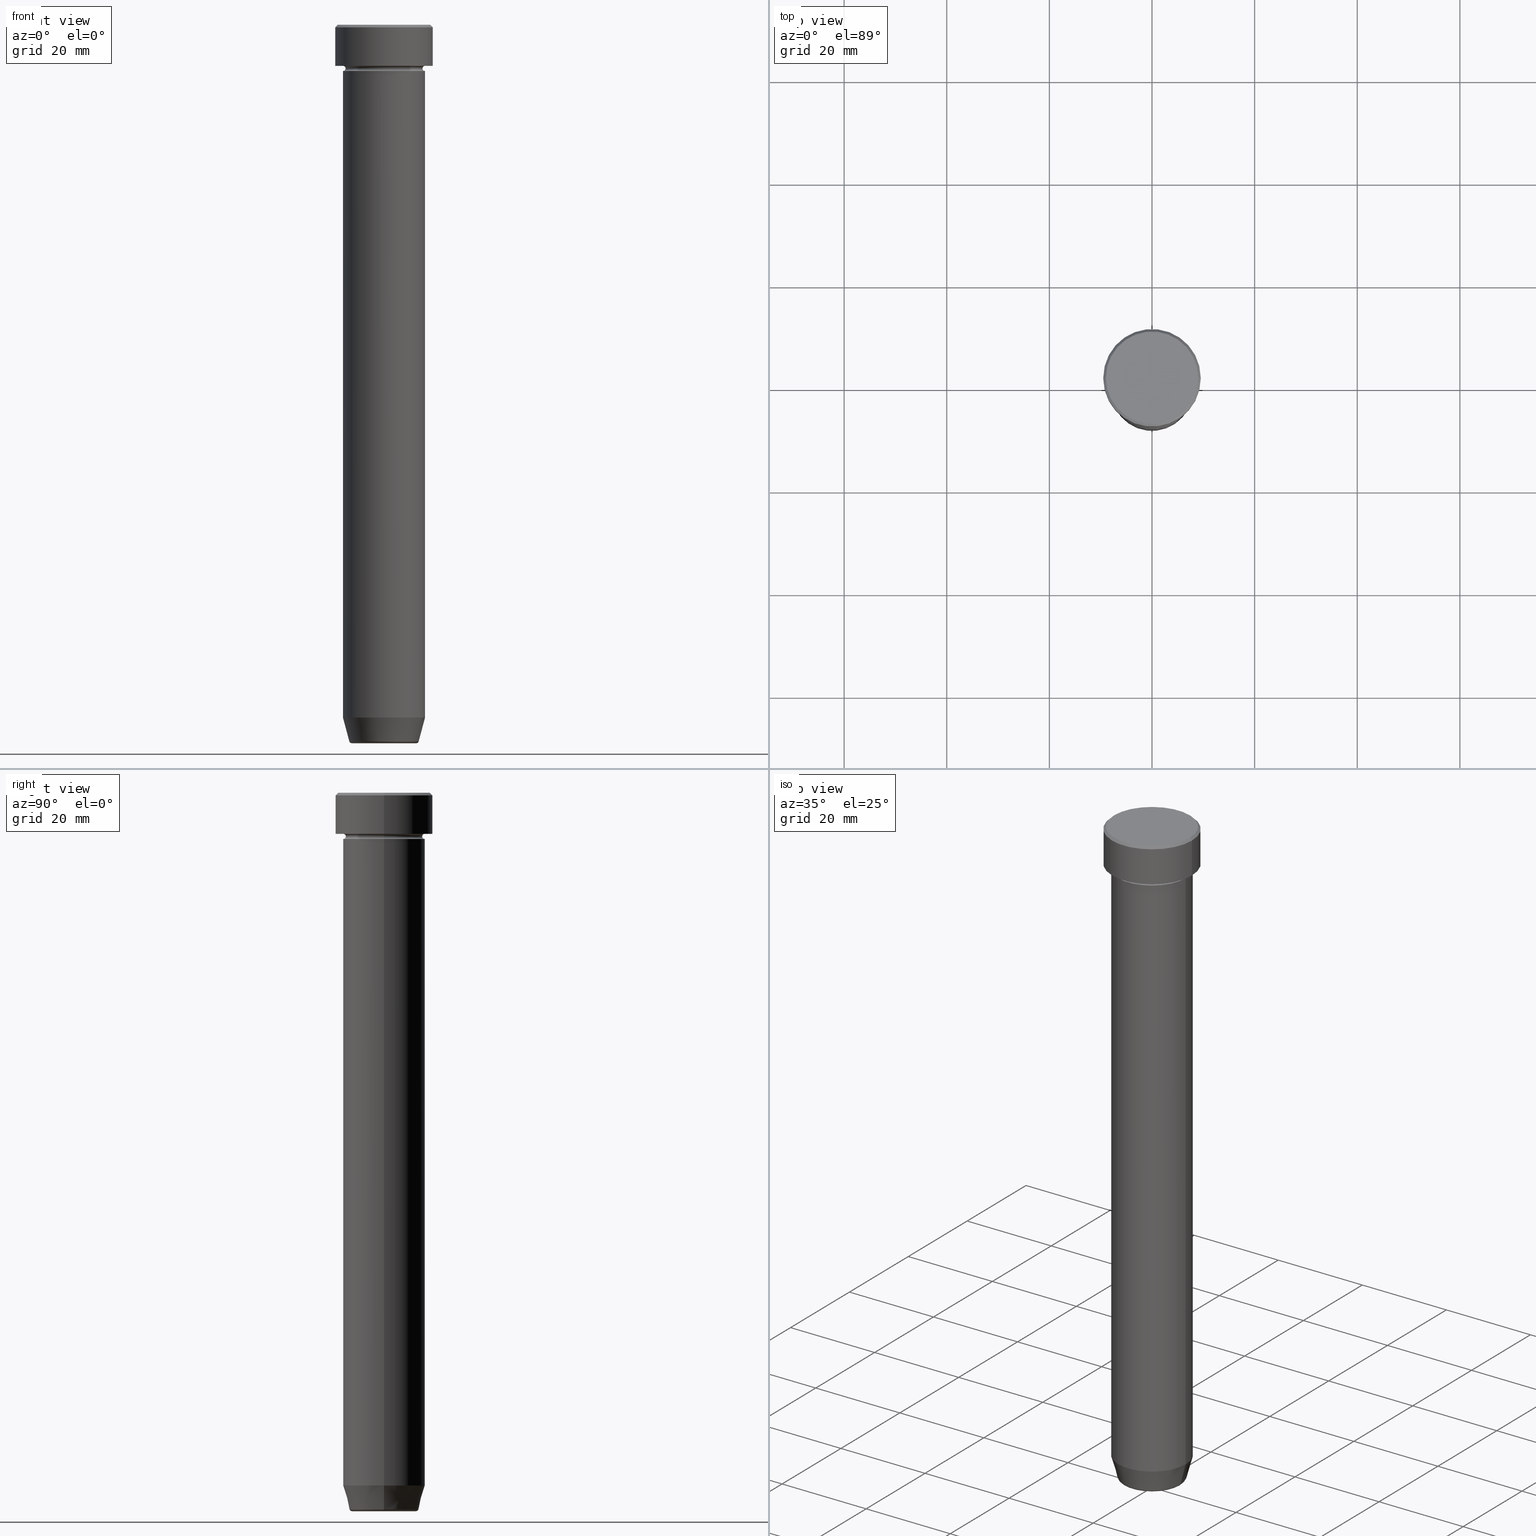
[diagram: canonical four-view strip — front | top / right | iso, engineering-drawing reading convention]
A machine part, canonical four-view strip (front | top / right | iso — engineering-drawing reading convention). The complete STEP part file that produces these views, byte-faithful:
ISO-10303-21;
HEADER;
FILE_DESCRIPTION (( 'STEP AP203' ),
    '1' );
FILE_NAME ('9b4e.STEP',
    '2024-01-02T22:11:18',
    ( '' ),
    ( '' ),
    'SwSTEP 2.0',
    'SolidWorks 2019',
    '' );
FILE_SCHEMA (( 'CONFIG_CONTROL_DESIGN' ));
ENDSEC;

DATA;
#1 = CARTESIAN_POINT ( 'NONE',  ( 9.000000000000001776, 1.102182119232617911E-15, 0.000000000000000000 ) ) ;
#2 = EDGE_CURVE ( 'NONE', #160, #187, #468, .T. ) ;
#3 = DIRECTION ( 'NONE',  ( -1.000000000000000000, 0.000000000000000000, 0.000000000000000000 ) ) ;
#4 = LINE ( 'NONE', #553, #63 ) ;
#5 = AXIS2_PLACEMENT_3D ( 'NONE', #596, #28, #176 ) ;
#6 = ORIENTED_EDGE ( 'NONE', *, *, #450, .T. ) ;
#7 = DATE_AND_TIME ( #227, #274 ) ;
#8 = CARTESIAN_POINT ( 'NONE',  ( 0.000000000000000000, 0.000000000000000000, 0.000000000000000000 ) ) ;
#9 = ORIENTED_EDGE ( 'NONE', *, *, #324, .T. ) ;
#10 = DIRECTION ( 'NONE',  ( 0.000000000000000000, 0.000000000000000000, 1.000000000000000000 ) ) ;
#11 = CARTESIAN_POINT ( 'NONE',  ( 0.000000000000000000, 0.000000000000000000, -134.9999999999999432 ) ) ;
#12 = ORIENTED_EDGE ( 'NONE', *, *, #433, .T. ) ;
#13 = APPROVAL_ROLE ( '' ) ;
#14 = CARTESIAN_POINT ( 'NONE',  ( -6.759553456999428001, 9.037619948979300296E-16, -139.6294095225512422 ) ) ;
#15 = CC_DESIGN_APPROVAL ( #115, ( #215 ) ) ;
#16 = VERTEX_POINT ( 'NONE', #391 ) ;
#17 = AXIS2_PLACEMENT_3D ( 'NONE', #388, #530, #300 ) ;
#18 = LINE ( 'NONE', #385, #265 ) ;
#19 = ORIENTED_EDGE ( 'NONE', *, *, #498, .F. ) ;
#20 = ADVANCED_BREP_SHAPE_REPRESENTATION ( '9b4e', ( #206, #367, #378 ), #149 ) ;
#21 = ORIENTED_EDGE ( 'NONE', *, *, #390, .F. ) ;
#22 = APPROVAL_DATE_TIME ( #290, #61 ) ;
#23 = EDGE_CURVE ( 'NONE', #401, #386, #563, .T. ) ;
#24 = DIRECTION ( 'NONE',  ( -0.000000000000000000, -0.000000000000000000, 1.000000000000000000 ) ) ;
#25 = CIRCLE ( 'NONE', #89, 0.5000000000000004441 ) ;
#26 = FACE_OUTER_BOUND ( 'NONE', #371, .T. ) ;
#27 = CYLINDRICAL_SURFACE ( 'NONE', #32, 8.000000000000000000 ) ;
#28 = DIRECTION ( 'NONE',  ( -0.000000000000000000, -0.000000000000000000, 1.000000000000000000 ) ) ;
#29 = DIRECTION ( 'NONE',  ( -0.000000000000000000, -0.000000000000000000, 1.000000000000000000 ) ) ;
#30 = AXIS2_PLACEMENT_3D ( 'NONE', #11, #191, #560 ) ;
#31 = LINE ( 'NONE', #128, #307 ) ;
#32 = AXIS2_PLACEMENT_3D ( 'NONE', #126, #266, #589 ) ;
#33 = ADVANCED_FACE ( 'NONE', ( #527 ), #211, .T. ) ;
#34 = CARTESIAN_POINT ( 'NONE',  ( 0.000000000000000000, 0.000000000000000000, -8.500000000000000000 ) ) ;
#35 = CIRCLE ( 'NONE', #395, 0.5000000000000004441 ) ;
#36 = DIRECTION ( 'NONE',  ( -0.000000000000000000, -0.000000000000000000, 1.000000000000000000 ) ) ;
#37 = ORIENTED_EDGE ( 'NONE', *, *, #225, .F. ) ;
#38 = ORIENTED_EDGE ( 'NONE', *, *, #433, .F. ) ;
#39 = CARTESIAN_POINT ( 'NONE',  ( 0.000000000000000000, 0.000000000000000000, -8.000000000000000000 ) ) ;
#40 = AXIS2_PLACEMENT_3D ( 'NONE', #568, #423, #212 ) ;
#41 = EDGE_LOOP ( 'NONE', ( #19, #224, #489, #569 ) ) ;
#42 = TOROIDAL_SURFACE ( 'NONE', #318, 8.000000000000000000, 0.5000000000000000000 ) ;
#43 = LINE ( 'NONE', #273, #380 ) ;
#44 = CC_DESIGN_PERSON_AND_ORGANIZATION_ASSIGNMENT ( #200, #205, ( #459 ) ) ;
#45 = PERSON_AND_ORGANIZATION_ROLE ( 'design_owner' ) ;
#46 = DIRECTION ( 'NONE',  ( 1.000000000000000000, 0.000000000000000000, 0.000000000000000000 ) ) ;
#47 =( LENGTH_UNIT ( ) NAMED_UNIT ( * ) SI_UNIT ( .MILLI., .METRE. ) );
#48 = DIRECTION ( 'NONE',  ( 1.000000000000000000, 0.000000000000000000, 0.000000000000000000 ) ) ;
#49 = AXIS2_PLACEMENT_3D ( 'NONE', #443, #541, #438 ) ;
#50 = CARTESIAN_POINT ( 'NONE',  ( 0.000000000000000000, 0.000000000000000000, 0.000000000000000000 ) ) ;
#51 = LOCAL_TIME ( 23, 11, 18.00000000000000000, #579 ) ;
#52 = ORIENTED_EDGE ( 'NONE', *, *, #232, .T. ) ;
#53 = DIRECTION ( 'NONE',  ( 0.7071067811865489050, 8.659560562354950115E-17, -0.7071067811865462405 ) ) ;
#54 = ORIENTED_EDGE ( 'NONE', *, *, #364, .T. ) ;
#55 = DATE_TIME_ROLE ( 'classification_date' ) ;
#56 = CARTESIAN_POINT ( 'NONE',  ( 7.500000000000000000, 0.000000000000000000, -8.500000000000000000 ) ) ;
#57 = EDGE_CURVE ( 'NONE', #152, #295, #43, .T. ) ;
#58 = VERTEX_POINT ( 'NONE', #475 ) ;
#59 = CARTESIAN_POINT ( 'NONE',  ( 0.000000000000000000, 0.000000000000000000, 0.000000000000000000 ) ) ;
#60 = AXIS2_PLACEMENT_3D ( 'NONE', #263, #491, #488 ) ;
#61 = APPROVAL ( #375, 'NEUR�EN�' ) ;
#62 = ORIENTED_EDGE ( 'NONE', *, *, #264, .F. ) ;
#63 = VECTOR ( 'NONE', #557, 999.9999999999998863 ) ;
#64 = CARTESIAN_POINT ( 'NONE',  ( 6.759553456999428001, 0.000000000000000000, -139.6294095225512422 ) ) ;
#65 = ORIENTED_EDGE ( 'NONE', *, *, #23, .T. ) ;
#66 = ADVANCED_FACE ( 'NONE', ( #72 ), #331, .T. ) ;
#67 = COORDINATED_UNIVERSAL_TIME_OFFSET ( 1, 0, .AHEAD. ) ;
#68 = DIRECTION ( 'NONE',  ( 1.000000000000000000, 0.000000000000000000, 0.000000000000000000 ) ) ;
#69 = ORIENTED_EDGE ( 'NONE', *, *, #119, .F. ) ;
#70 = PERSON_AND_ORGANIZATION ( #529, #121 ) ;
#71 = CARTESIAN_POINT ( 'NONE',  ( 0.000000000000000000, 0.000000000000000000, -139.4999999999999716 ) ) ;
#72 = FACE_OUTER_BOUND ( 'NONE', #573, .T. ) ;
#73 = AXIS2_PLACEMENT_3D ( 'NONE', #90, #505, #549 ) ;
#74 = FACE_OUTER_BOUND ( 'NONE', #335, .T. ) ;
#75 = CARTESIAN_POINT ( 'NONE',  ( 0.000000000000000000, 0.000000000000000000, -0.4999999999999968914 ) ) ;
#76 = DIRECTION ( 'NONE',  ( 1.000000000000000000, 0.000000000000000000, 0.000000000000000000 ) ) ;
#77 = PRODUCT_RELATED_PRODUCT_CATEGORY ( 'detail', '', ( #188 ) ) ;
#78 = CIRCLE ( 'NONE', #101, 0.4999999999999995559 ) ;
#79 = DIRECTION ( 'NONE',  ( -0.2588190451025214056, 3.169619151431772953E-17, 0.9659258262890680902 ) ) ;
#80 = VERTEX_POINT ( 'NONE', #430 ) ;
#81 = ADVANCED_FACE ( 'NONE', ( #26 ), #210, .T. ) ;
#82 = CARTESIAN_POINT ( 'NONE',  ( 0.000000000000000000, 0.000000000000000000, -8.000000000000000000 ) ) ;
#83 = DIRECTION ( 'NONE',  ( -0.000000000000000000, -0.000000000000000000, 1.000000000000000000 ) ) ;
#84 = ORIENTED_EDGE ( 'NONE', *, *, #232, .F. ) ;
#85 = AXIS2_PLACEMENT_3D ( 'NONE', #59, #24, #379 ) ;
#86 = DIRECTION ( 'NONE',  ( -0.000000000000000000, -0.000000000000000000, 1.000000000000000000 ) ) ;
#87 = ORIENTED_EDGE ( 'NONE', *, *, #444, .F. ) ;
#88 = ORIENTED_EDGE ( 'NONE', *, *, #518, .T. ) ;
#89 = AXIS2_PLACEMENT_3D ( 'NONE', #233, #230, #405 ) ;
#90 = CARTESIAN_POINT ( 'NONE',  ( 0.000000000000000000, 0.000000000000000000, -22.00000000000000000 ) ) ;
#91 = EDGE_CURVE ( 'NONE', #401, #295, #4, .T. ) ;
#92 = CIRCLE ( 'NONE', #73, 8.000000000000000000 ) ;
#93 = DIRECTION ( 'NONE',  ( -1.000000000000000000, 1.224646799147353454E-16, 0.000000000000000000 ) ) ;
#94 = CARTESIAN_POINT ( 'NONE',  ( 9.500000000000000000, 0.000000000000000000, 0.000000000000000000 ) ) ;
#95 = ADVANCED_FACE ( 'NONE', ( #276 ), #317, .T. ) ;
#96 = CARTESIAN_POINT ( 'NONE',  ( 0.000000000000000000, 0.000000000000000000, -9.000000000000001776 ) ) ;
#97 = DIRECTION ( 'NONE',  ( -1.000000000000000000, -1.224646799147353454E-16, 0.000000000000000000 ) ) ;
#98 = VERTEX_POINT ( 'NONE', #464 ) ;
#99 = EDGE_CURVE ( 'NONE', #558, #112, #411, .T. ) ;
#100 = COORDINATED_UNIVERSAL_TIME_OFFSET ( 1, 0, .AHEAD. ) ;
#101 = AXIS2_PLACEMENT_3D ( 'NONE', #454, #403, #93 ) ;
#102 = DIRECTION ( 'NONE',  ( 1.000000000000000000, 0.000000000000000000, 0.000000000000000000 ) ) ;
#103 = ORIENTED_EDGE ( 'NONE', *, *, #412, .F. ) ;
#104 = DIRECTION ( 'NONE',  ( 1.000000000000000000, 0.000000000000000000, 0.000000000000000000 ) ) ;
#105 = DIRECTION ( 'NONE',  ( 1.000000000000000000, 0.000000000000000000, 0.000000000000000000 ) ) ;
#106 = ORIENTED_EDGE ( 'NONE', *, *, #250, .F. ) ;
#107 = LINE ( 'NONE', #340, #572 ) ;
#108 = ORIENTED_EDGE ( 'NONE', *, *, #538, .T. ) ;
#109 = DIRECTION ( 'NONE',  ( -1.000000000000000000, 0.000000000000000000, -0.000000000000000000 ) ) ;
#110 = AXIS2_PLACEMENT_3D ( 'NONE', #544, #352, #533 ) ;
#111 = EDGE_CURVE ( 'NONE', #386, #424, #143, .T. ) ;
#112 = VERTEX_POINT ( 'NONE', #407 ) ;
#113 = DIRECTION ( 'NONE',  ( 0.2588190451025214056, 0.000000000000000000, 0.9659258262890680902 ) ) ;
#114 = ORIENTED_EDGE ( 'NONE', *, *, #324, .F. ) ;
#115 = APPROVAL ( #546, 'NEUR�EN�' ) ;
#116 = CALENDAR_DATE ( 2024, 2, 1 ) ;
#117 = CARTESIAN_POINT ( 'NONE',  ( 0.000000000000000000, 0.000000000000000000, -139.9999999999999716 ) ) ;
#118 = ORIENTED_EDGE ( 'NONE', *, *, #99, .T. ) ;
#119 = EDGE_CURVE ( 'NONE', #152, #202, #543, .T. ) ;
#120 = DIRECTION ( 'NONE',  ( 0.000000000000000000, 0.000000000000000000, -1.000000000000000000 ) ) ;
#121 = ORGANIZATION ( 'NEUR�EN�', 'NEUR�EN�', '' ) ;
#122 = EDGE_LOOP ( 'NONE', ( #286, #313, #269, #84 ) ) ;
#123 = TOROIDAL_SURFACE ( 'NONE', #481, 8.000000000000000000, 0.5000000000000000000 ) ;
#124 = DIRECTION ( 'NONE',  ( -0.000000000000000000, -0.000000000000000000, 1.000000000000000000 ) ) ;
#125 = DIRECTION ( 'NONE',  ( 0.000000000000000000, 0.000000000000000000, -1.000000000000000000 ) ) ;
#126 = CARTESIAN_POINT ( 'NONE',  ( 0.000000000000000000, 0.000000000000000000, 0.000000000000000000 ) ) ;
#127 = AXIS2_PLACEMENT_3D ( 'NONE', #169, #214, #587 ) ;
#128 = CARTESIAN_POINT ( 'NONE',  ( -8.000000000000000000, 9.797174393178825657E-16, 0.000000000000000000 ) ) ;
#129 = DIRECTION ( 'NONE',  ( 0.000000000000000000, 0.000000000000000000, -1.000000000000000000 ) ) ;
#130 = UNCERTAINTY_MEASURE_WITH_UNIT (LENGTH_MEASURE( 1.000000000000000082E-05 ), #47, 'distance_accuracy_value', 'NONE');
#131 = CARTESIAN_POINT ( 'NONE',  ( 6.276590543854897675, 0.000000000000000000, -139.4999999999999716 ) ) ;
#132 = EDGE_LOOP ( 'NONE', ( #204, #465, #414, #21 ) ) ;
#133 = VERTEX_POINT ( 'NONE', #56 ) ;
#134 = CIRCLE ( 'NONE', #448, 6.276590543854897675 ) ;
#135 = ADVANCED_FACE ( 'NONE', ( #416 ), #376, .T. ) ;
#136 = AXIS2_PLACEMENT_3D ( 'NONE', #406, #326, #510 ) ;
#137 = CIRCLE ( 'NONE', #49, 0.5000000000000004441 ) ;
#138 = FACE_OUTER_BOUND ( 'NONE', #122, .T. ) ;
#139 = DIRECTION ( 'NONE',  ( 0.000000000000000000, 0.000000000000000000, -1.000000000000000000 ) ) ;
#140 = CIRCLE ( 'NONE', #440, 6.759553456999428001 ) ;
#141 = EDGE_LOOP ( 'NONE', ( #524, #434, #54, #381 ) ) ;
#142 = PERSON_AND_ORGANIZATION ( #529, #121 ) ;
#143 = LINE ( 'NONE', #1, #175 ) ;
#144 = ORIENTED_EDGE ( 'NONE', *, *, #490, .T. ) ;
#145 = MECHANICAL_CONTEXT ( 'NONE', #536, 'mechanical' ) ;
#146 = DIRECTION ( 'NONE',  ( -1.224646799147353207E-16, 1.000000000000000000, 0.000000000000000000 ) ) ;
#147 = ORIENTED_EDGE ( 'NONE', *, *, #554, .T. ) ;
#148 = DIRECTION ( 'NONE',  ( -1.000000000000000000, 0.000000000000000000, -0.000000000000000000 ) ) ;
#149 =( GEOMETRIC_REPRESENTATION_CONTEXT ( 3 ) GLOBAL_UNCERTAINTY_ASSIGNED_CONTEXT ( ( #130 ) ) GLOBAL_UNIT_ASSIGNED_CONTEXT ( ( #47, #181, #415 ) ) REPRESENTATION_CONTEXT ( 'NONE', 'WORKASPACE' ) );
#150 = DIRECTION ( 'NONE',  ( -0.000000000000000000, -0.000000000000000000, 1.000000000000000000 ) ) ;
#151 = VECTOR ( 'NONE', #502, 1000.000000000000000 ) ;
#152 = VERTEX_POINT ( 'NONE', #241 ) ;
#153 = FACE_OUTER_BOUND ( 'NONE', #479, .T. ) ;
#154 = ORIENTED_EDGE ( 'NONE', *, *, #518, .F. ) ;
#155 = DATE_AND_TIME ( #477, #586 ) ;
#156 = FACE_OUTER_BOUND ( 'NONE', #562, .T. ) ;
#157 = EDGE_LOOP ( 'NONE', ( #311, #88 ) ) ;
#158 = DIRECTION ( 'NONE',  ( -0.000000000000000000, -0.000000000000000000, 1.000000000000000000 ) ) ;
#159 = TOROIDAL_SURFACE ( 'NONE', #499, 8.000000000000000000, 0.5000000000000000000 ) ;
#160 = VERTEX_POINT ( 'NONE', #179 ) ;
#161 = EDGE_LOOP ( 'NONE', ( #303, #599 ) ) ;
#162 = DIRECTION ( 'NONE',  ( 0.000000000000000000, -0.000000000000000000, 1.000000000000000000 ) ) ;
#163 = ORIENTED_EDGE ( 'NONE', *, *, #428, .F. ) ;
#164 = EDGE_CURVE ( 'NONE', #193, #442, #463, .T. ) ;
#165 = DIRECTION ( 'NONE',  ( -0.000000000000000000, -0.000000000000000000, 1.000000000000000000 ) ) ;
#166 = CIRCLE ( 'NONE', #60, 8.000000000000000000 ) ;
#167 = CC_DESIGN_APPROVAL ( #61, ( #197 ) ) ;
#168 = DIRECTION ( 'NONE',  ( -1.000000000000000000, 0.000000000000000000, 0.000000000000000000 ) ) ;
#169 = CARTESIAN_POINT ( 'NONE',  ( 0.000000000000000000, 0.000000000000000000, -22.00000000000000000 ) ) ;
#170 = EDGE_CURVE ( 'NONE', #16, #343, #92, .T. ) ;
#171 = CARTESIAN_POINT ( 'NONE',  ( 8.000000000000000000, 0.000000000000000000, -22.00000000000000000 ) ) ;
#172 = ORIENTED_EDGE ( 'NONE', *, *, #264, .T. ) ;
#173 = CIRCLE ( 'NONE', #393, 0.5000000000000004441 ) ;
#174 = DIRECTION ( 'NONE',  ( 0.000000000000000000, -1.000000000000000000, 0.000000000000000000 ) ) ;
#175 = VECTOR ( 'NONE', #53, 999.9999999999998863 ) ;
#176 = DIRECTION ( 'NONE',  ( 1.000000000000000000, 0.000000000000000000, 0.000000000000000000 ) ) ;
#177 = DIRECTION ( 'NONE',  ( 0.000000000000000000, 0.000000000000000000, -1.000000000000000000 ) ) ;
#178 = VERTEX_POINT ( 'NONE', #234 ) ;
#179 = CARTESIAN_POINT ( 'NONE',  ( -7.500000000000000000, 9.491012693391985815E-16, -8.500000000000000000 ) ) ;
#180 = CIRCLE ( 'NONE', #523, 8.000000000000000000 ) ;
#181 =( NAMED_UNIT ( * ) PLANE_ANGLE_UNIT ( ) SI_UNIT ( $, .RADIAN. ) );
#182 = CARTESIAN_POINT ( 'NONE',  ( -8.000000000000000000, 9.797174393178825657E-16, -22.00000000000000000 ) ) ;
#183 = ORIENTED_EDGE ( 'NONE', *, *, #164, .F. ) ;
#184 = DIRECTION ( 'NONE',  ( 1.000000000000000000, 0.000000000000000000, 0.000000000000000000 ) ) ;
#185 = CARTESIAN_POINT ( 'NONE',  ( 0.000000000000000000, 8.000000000000000000, -22.00000000000000000 ) ) ;
#186 = EDGE_CURVE ( 'NONE', #202, #424, #323, .T. ) ;
#187 = VERTEX_POINT ( 'NONE', #455 ) ;
#188 = PRODUCT ( '9b4e', '9b4e', '', ( #145 ) ) ;
#189 = PERSON_AND_ORGANIZATION ( #529, #121 ) ;
#190 = AXIS2_PLACEMENT_3D ( 'NONE', #522, #299, #472 ) ;
#191 = DIRECTION ( 'NONE',  ( -0.000000000000000000, -0.000000000000000000, 1.000000000000000000 ) ) ;
#192 = AXIS2_PLACEMENT_3D ( 'NONE', #580, #435, #469 ) ;
#193 = VERTEX_POINT ( 'NONE', #182 ) ;
#194 = APPROVAL_DATE_TIME ( #336, #301 ) ;
#195 = APPROVAL_PERSON_ORGANIZATION ( #142, #115, #410 ) ;
#196 = DIRECTION ( 'NONE',  ( 1.000000000000000000, 0.000000000000000000, 0.000000000000000000 ) ) ;
#197 = PRODUCT_DEFINITION_FORMATION_WITH_SPECIFIED_SOURCE ( 'LIBOVOLN�', '', #188, .NOT_KNOWN. ) ;
#198 = ORIENTED_EDGE ( 'NONE', *, *, #498, .T. ) ;
#199 = EDGE_CURVE ( 'NONE', #133, #178, #35, .T. ) ;
#200 = PERSON_AND_ORGANIZATION ( #529, #121 ) ;
#201 = CARTESIAN_POINT ( 'NONE',  ( 0.000000000000000000, 0.000000000000000000, -139.4999999999999716 ) ) ;
#202 = VERTEX_POINT ( 'NONE', #419 ) ;
#203 = CARTESIAN_POINT ( 'NONE',  ( 0.000000000000000000, 0.000000000000000000, -8.500000000000000000 ) ) ;
#204 = ORIENTED_EDGE ( 'NONE', *, *, #461, .F. ) ;
#205 = PERSON_AND_ORGANIZATION_ROLE ( 'classification_officer' ) ;
#206 = MANIFOLD_SOLID_BREP ( 'Zkosen�1', #315 ) ;
#207 = FACE_OUTER_BOUND ( 'NONE', #427, .T. ) ;
#208 = AXIS2_PLACEMENT_3D ( 'NONE', #252, #576, #519 ) ;
#209 = APPROVAL_PERSON_ORGANIZATION ( #246, #301, #13 ) ;
#210 = CYLINDRICAL_SURFACE ( 'NONE', #17, 9.500000000000000000 ) ;
#211 = CONICAL_SURFACE ( 'NONE', #5, 6.660254037844373975, 0.2617993877991501295 ) ;
#212 = DIRECTION ( 'NONE',  ( -1.000000000000000000, 0.000000000000000000, 0.000000000000000000 ) ) ;
#213 = EDGE_LOOP ( 'NONE', ( #377, #114, #237, #494 ) ) ;
#214 = DIRECTION ( 'NONE',  ( -0.000000000000000000, -0.000000000000000000, 1.000000000000000000 ) ) ;
#215 = PRODUCT_DEFINITION ( 'NEZN�M�', '', #197, #218 ) ;
#216 = CARTESIAN_POINT ( 'NONE',  ( -6.660254037844373975, 8.156458788954347943E-16, -139.9999999999999716 ) ) ;
#217 = CIRCLE ( 'NONE', #226, 8.000000000000000000 ) ;
#218 = DESIGN_CONTEXT ( 'detailed design', #342, 'design' ) ;
#219 = FACE_OUTER_BOUND ( 'NONE', #41, .T. ) ;
#220 = VERTEX_POINT ( 'NONE', #14 ) ;
#221 = AXIS2_PLACEMENT_3D ( 'NONE', #249, #426, #109 ) ;
#222 = ORIENTED_EDGE ( 'NONE', *, *, #592, .T. ) ;
#223 = CARTESIAN_POINT ( 'NONE',  ( 9.500000000000000000, 0.000000000000000000, -0.4999999999999968914 ) ) ;
#224 = ORIENTED_EDGE ( 'NONE', *, *, #582, .T. ) ;
#225 = EDGE_CURVE ( 'NONE', #327, #220, #140, .T. ) ;
#226 = AXIS2_PLACEMENT_3D ( 'NONE', #82, #394, #168 ) ;
#227 = CALENDAR_DATE ( 2024, 2, 1 ) ;
#228 = DIRECTION ( 'NONE',  ( -0.000000000000000000, -0.000000000000000000, 1.000000000000000000 ) ) ;
#229 = ADVANCED_FACE ( 'NONE', ( #330 ), #123, .F. ) ;
#230 = DIRECTION ( 'NONE',  ( 1.224646799147353207E-16, 1.000000000000000000, 0.000000000000000000 ) ) ;
#231 = CARTESIAN_POINT ( 'NONE',  ( 0.000000000000000000, 0.000000000000000000, -139.6294095225512422 ) ) ;
#232 = EDGE_CURVE ( 'NONE', #424, #295, #508, .T. ) ;
#233 = CARTESIAN_POINT ( 'NONE',  ( -8.000000000000000000, 9.797174393178825657E-16, -8.500000000000000000 ) ) ;
#234 = CARTESIAN_POINT ( 'NONE',  ( 8.000000000000000000, 9.797174393178825657E-16, -8.000000000000000000 ) ) ;
#235 = AXIS2_PLACEMENT_3D ( 'NONE', #312, #304, #441 ) ;
#236 = DIRECTION ( 'NONE',  ( -0.000000000000000000, -0.000000000000000000, 1.000000000000000000 ) ) ;
#237 = ORIENTED_EDGE ( 'NONE', *, *, #476, .T. ) ;
#238 = DIRECTION ( 'NONE',  ( 1.000000000000000000, 0.000000000000000000, 0.000000000000000000 ) ) ;
#239 = ORIENTED_EDGE ( 'NONE', *, *, #425, .F. ) ;
#240 = PERSON_AND_ORGANIZATION_ROLE ( 'creator' ) ;
#241 = CARTESIAN_POINT ( 'NONE',  ( -9.500000000000000000, 1.163414459189985485E-15, -8.000000000000000000 ) ) ;
#242 = AXIS2_PLACEMENT_3D ( 'NONE', #201, #382, #196 ) ;
#243 = CLOSED_SHELL ( 'NONE', ( #294, #33, #277, #577, #244, #66, #298, #373 ) ) ;
#244 = ADVANCED_FACE ( 'NONE', ( #457 ), #497, .T. ) ;
#245 = ORIENTED_EDGE ( 'NONE', *, *, #476, .F. ) ;
#246 = PERSON_AND_ORGANIZATION ( #529, #121 ) ;
#247 = AXIS2_PLACEMENT_3D ( 'NONE', #305, #124, #268 ) ;
#248 = CIRCLE ( 'NONE', #496, 7.500000000000000000 ) ;
#249 = CARTESIAN_POINT ( 'NONE',  ( 0.000000000000000000, 9.500000000000000000, -8.000000000000000000 ) ) ;
#250 = EDGE_CURVE ( 'NONE', #112, #558, #288, .T. ) ;
#251 = EDGE_LOOP ( 'NONE', ( #338, #12, #409, #62 ) ) ;
#252 = CARTESIAN_POINT ( 'NONE',  ( 0.000000000000000000, 0.000000000000000000, -8.500000000000000000 ) ) ;
#253 = EDGE_LOOP ( 'NONE', ( #565, #69 ) ) ;
#254 = CALENDAR_DATE ( 2024, 2, 1 ) ;
#255 = FACE_OUTER_BOUND ( 'NONE', #253, .T. ) ;
#256 = AXIS2_PLACEMENT_3D ( 'NONE', #50, #372, #238 ) ;
#257 = ORIENTED_EDGE ( 'NONE', *, *, #425, .T. ) ;
#258 = ADVANCED_FACE ( 'NONE', ( #516 ), #493, .T. ) ;
#259 = DIRECTION ( 'NONE',  ( -0.000000000000000000, -0.000000000000000000, 1.000000000000000000 ) ) ;
#260 = ORIENTED_EDGE ( 'NONE', *, *, #186, .T. ) ;
#261 = CYLINDRICAL_SURFACE ( 'NONE', #85, 8.000000000000000000 ) ;
#262 = CC_DESIGN_PERSON_AND_ORGANIZATION_ASSIGNMENT ( #325, #509, ( #215 ) ) ;
#263 = CARTESIAN_POINT ( 'NONE',  ( 0.000000000000000000, 0.000000000000000000, -22.00000000000000000 ) ) ;
#264 = EDGE_CURVE ( 'NONE', #327, #558, #18, .T. ) ;
#265 = VECTOR ( 'NONE', #113, 1000.000000000000000 ) ;
#266 = DIRECTION ( 'NONE',  ( -0.000000000000000000, -0.000000000000000000, 1.000000000000000000 ) ) ;
#267 = AXIS2_PLACEMENT_3D ( 'NONE', #278, #452, #148 ) ;
#268 = DIRECTION ( 'NONE',  ( -1.000000000000000000, 0.000000000000000000, 0.000000000000000000 ) ) ;
#269 = ORIENTED_EDGE ( 'NONE', *, *, #91, .T. ) ;
#270 = DIRECTION ( 'NONE',  ( 1.000000000000000000, 0.000000000000000000, 0.000000000000000000 ) ) ;
#271 = ORIENTED_EDGE ( 'NONE', *, *, #539, .T. ) ;
#272 = DIRECTION ( 'NONE',  ( 1.000000000000000000, 0.000000000000000000, 0.000000000000000000 ) ) ;
#273 = CARTESIAN_POINT ( 'NONE',  ( -9.500000000000000000, 1.163414459189985485E-15, 0.000000000000000000 ) ) ;
#274 = LOCAL_TIME ( 23, 11, 18.00000000000000000, #319 ) ;
#275 = CARTESIAN_POINT ( 'NONE',  ( 0.000000000000000000, 0.000000000000000000, -8.500000000000000000 ) ) ;
#276 = FACE_OUTER_BOUND ( 'NONE', #555, .T. ) ;
#277 = ADVANCED_FACE ( 'NONE', ( #74 ), #287, .T. ) ;
#278 = CARTESIAN_POINT ( 'NONE',  ( 0.000000000000000000, 0.000000000000000000, -22.00000000000000000 ) ) ;
#279 = DIRECTION ( 'NONE',  ( -1.000000000000000000, 0.000000000000000000, 0.000000000000000000 ) ) ;
#280 = ORIENTED_EDGE ( 'NONE', *, *, #57, .F. ) ;
#281 = CIRCLE ( 'NONE', #437, 9.500000000000000000 ) ;
#282 = CALENDAR_DATE ( 2024, 2, 1 ) ;
#283 = DIRECTION ( 'NONE',  ( -0.000000000000000000, -0.000000000000000000, 1.000000000000000000 ) ) ;
#284 = ORIENTED_EDGE ( 'NONE', *, *, #566, .T. ) ;
#285 = DIRECTION ( 'NONE',  ( -1.000000000000000000, 0.000000000000000000, -0.000000000000000000 ) ) ;
#286 = ORIENTED_EDGE ( 'NONE', *, *, #111, .F. ) ;
#287 = CYLINDRICAL_SURFACE ( 'NONE', #192, 8.000000000000000000 ) ;
#288 = CIRCLE ( 'NONE', #30, 8.000000000000000000 ) ;
#289 = ORIENTED_EDGE ( 'NONE', *, *, #461, .T. ) ;
#290 = DATE_AND_TIME ( #116, #51 ) ;
#291 = TOROIDAL_SURFACE ( 'NONE', #561, 6.276590543854897675, 0.5000000000000000000 ) ;
#292 = CC_DESIGN_SECURITY_CLASSIFICATION ( #459, ( #197 ) ) ;
#293 = FACE_OUTER_BOUND ( 'NONE', #420, .T. ) ;
#294 = ADVANCED_FACE ( 'NONE', ( #207 ), #593, .T. ) ;
#295 = VERTEX_POINT ( 'NONE', #389 ) ;
#296 = DIRECTION ( 'NONE',  ( -0.000000000000000000, -0.000000000000000000, 1.000000000000000000 ) ) ;
#297 = ORIENTED_EDGE ( 'NONE', *, *, #554, .F. ) ;
#298 = ADVANCED_FACE ( 'NONE', ( #156 ), #302, .F. ) ;
#299 = DIRECTION ( 'NONE',  ( 0.000000000000000000, 0.000000000000000000, -1.000000000000000000 ) ) ;
#300 = DIRECTION ( 'NONE',  ( 1.000000000000000000, 0.000000000000000000, 0.000000000000000000 ) ) ;
#301 = APPROVAL ( #344, 'NEUR�EN�' ) ;
#302 = PLANE ( 'NONE',  #583 ) ;
#303 = ORIENTED_EDGE ( 'NONE', *, *, #412, .T. ) ;
#304 = DIRECTION ( 'NONE',  ( -0.000000000000000000, -0.000000000000000000, 1.000000000000000000 ) ) ;
#305 = CARTESIAN_POINT ( 'NONE',  ( 0.000000000000000000, 0.000000000000000000, -8.000000000000000000 ) ) ;
#306 = LINE ( 'NONE', #216, #431 ) ;
#307 = VECTOR ( 'NONE', #356, 1000.000000000000000 ) ;
#308 = CC_DESIGN_PERSON_AND_ORGANIZATION_ASSIGNMENT ( #70, #348, ( #197 ) ) ;
#309 = ADVANCED_FACE ( 'NONE', ( #293 ), #261, .T. ) ;
#310 = CARTESIAN_POINT ( 'NONE',  ( 0.000000000000000000, 0.000000000000000000, 0.000000000000000000 ) ) ;
#311 = ORIENTED_EDGE ( 'NONE', *, *, #428, .T. ) ;
#312 = CARTESIAN_POINT ( 'NONE',  ( 0.000000000000000000, 0.000000000000000000, -9.000000000000001776 ) ) ;
#313 = ORIENTED_EDGE ( 'NONE', *, *, #23, .F. ) ;
#314 = ORIENTED_EDGE ( 'NONE', *, *, #111, .T. ) ;
#315 = CLOSED_SHELL ( 'NONE', ( #258, #333, #456, #309, #398, #135, #95, #81, #321, #384, #229, #351, #588 ) ) ;
#316 = PLANE ( 'NONE',  #267 ) ;
#317 = PLANE ( 'NONE',  #422 ) ;
#318 = AXIS2_PLACEMENT_3D ( 'NONE', #436, #584, #76 ) ;
#319 = COORDINATED_UNIVERSAL_TIME_OFFSET ( 1, 0, .AHEAD. ) ;
#320 = DIRECTION ( 'NONE',  ( 1.000000000000000000, 0.000000000000000000, 0.000000000000000000 ) ) ;
#321 = ADVANCED_FACE ( 'NONE', ( #337, #255 ), #564, .T. ) ;
#322 = APPROVAL_DATE_TIME ( #7, #115 ) ;
#323 = LINE ( 'NONE', #94, #151 ) ;
#324 = EDGE_CURVE ( 'NONE', #545, #80, #445, .T. ) ;
#325 = PERSON_AND_ORGANIZATION ( #529, #121 ) ;
#326 = DIRECTION ( 'NONE',  ( 0.000000000000000000, 0.000000000000000000, -1.000000000000000000 ) ) ;
#327 = VERTEX_POINT ( 'NONE', #64 ) ;
#328 = EDGE_CURVE ( 'NONE', #80, #545, #134, .T. ) ;
#329 = CARTESIAN_POINT ( 'NONE',  ( 0.000000000000000000, 0.000000000000000000, 0.000000000000000000 ) ) ;
#330 = FACE_OUTER_BOUND ( 'NONE', #581, .T. ) ;
#331 = CONICAL_SURFACE ( 'NONE', #341, 6.660254037844373975, 0.2617993877991501295 ) ;
#332 = ORIENTED_EDGE ( 'NONE', *, *, #364, .F. ) ;
#333 = ADVANCED_FACE ( 'NONE', ( #153 ), #408, .F. ) ;
#334 = LINE ( 'NONE', #525, #470 ) ;
#335 = EDGE_LOOP ( 'NONE', ( #118, #578, #103, #332 ) ) ;
#336 = DATE_AND_TIME ( #254, #439 ) ;
#337 = FACE_BOUND ( 'NONE', #157, .T. ) ;
#338 = ORIENTED_EDGE ( 'NONE', *, *, #225, .T. ) ;
#339 = AXIS2_PLACEMENT_3D ( 'NONE', #357, #355, #270 ) ;
#340 = CARTESIAN_POINT ( 'NONE',  ( -8.000000000000000000, 9.797174393178825657E-16, 0.000000000000000000 ) ) ;
#341 = AXIS2_PLACEMENT_3D ( 'NONE', #492, #228, #404 ) ;
#342 = APPLICATION_CONTEXT ( 'configuration controlled 3d designs of mechanical parts and assemblies' ) ;
#343 = VERTEX_POINT ( 'NONE', #349 ) ;
#344 = APPROVAL_STATUS ( 'not_yet_approved' ) ;
#345 = FACE_OUTER_BOUND ( 'NONE', #132, .T. ) ;
#346 = ORIENTED_EDGE ( 'NONE', *, *, #119, .T. ) ;
#347 = CC_DESIGN_DATE_AND_TIME_ASSIGNMENT ( #155, #55, ( #459 ) ) ;
#348 = PERSON_AND_ORGANIZATION_ROLE ( 'design_supplier' ) ;
#349 = CARTESIAN_POINT ( 'NONE',  ( 8.000000000000000000, 0.000000000000000000, -22.00000000000000000 ) ) ;
#350 = ORIENTED_EDGE ( 'NONE', *, *, #199, .F. ) ;
#351 = ADVANCED_FACE ( 'NONE', ( #478 ), #159, .F. ) ;
#352 = DIRECTION ( 'NONE',  ( -0.000000000000000000, -0.000000000000000000, 1.000000000000000000 ) ) ;
#353 = LOCAL_TIME ( 23, 11, 18.00000000000000000, #100 ) ;
#354 = AXIS2_PLACEMENT_3D ( 'NONE', #366, #150, #320 ) ;
#355 = DIRECTION ( 'NONE',  ( -0.000000000000000000, -0.000000000000000000, 1.000000000000000000 ) ) ;
#356 = DIRECTION ( 'NONE',  ( -0.000000000000000000, -0.000000000000000000, 1.000000000000000000 ) ) ;
#357 = CARTESIAN_POINT ( 'NONE',  ( 0.000000000000000000, 0.000000000000000000, 0.000000000000000000 ) ) ;
#358 = CARTESIAN_POINT ( 'NONE',  ( -8.000000000000000000, 0.000000000000000000, -8.500000000000000000 ) ) ;
#359 = AXIS2_PLACEMENT_3D ( 'NONE', #329, #177, #3 ) ;
#360 = EDGE_CURVE ( 'NONE', #112, #16, #107, .T. ) ;
#361 = DIRECTION ( 'NONE',  ( 1.000000000000000000, 0.000000000000000000, 0.000000000000000000 ) ) ;
#362 = DIRECTION ( 'NONE',  ( -0.000000000000000000, -0.000000000000000000, 1.000000000000000000 ) ) ;
#363 = DIRECTION ( 'NONE',  ( 0.000000000000000000, -0.000000000000000000, 1.000000000000000000 ) ) ;
#364 = EDGE_CURVE ( 'NONE', #558, #343, #334, .T. ) ;
#365 = DIRECTION ( 'NONE',  ( 1.000000000000000000, 0.000000000000000000, 0.000000000000000000 ) ) ;
#366 = CARTESIAN_POINT ( 'NONE',  ( 0.000000000000000000, 0.000000000000000000, -22.00000000000000000 ) ) ;
#367 = MANIFOLD_SOLID_BREP ( 'Zaoblit4', #243 ) ;
#368 = CIRCLE ( 'NONE', #594, 7.500000000000000000 ) ;
#369 = APPLICATION_PROTOCOL_DEFINITION ( 'international standard', 'config_control_design', 1994, #536 ) ;
#370 = CARTESIAN_POINT ( 'NONE',  ( 8.000000000000000000, 9.797174393178825657E-16, -8.500000000000000000 ) ) ;
#371 = EDGE_LOOP ( 'NONE', ( #280, #346, #260, #52 ) ) ;
#372 = DIRECTION ( 'NONE',  ( -0.000000000000000000, -0.000000000000000000, 1.000000000000000000 ) ) ;
#373 = ADVANCED_FACE ( 'NONE', ( #474 ), #291, .T. ) ;
#374 = EDGE_LOOP ( 'NONE', ( #503, #314, #297, #383 ) ) ;
#375 = APPROVAL_STATUS ( 'not_yet_approved' ) ;
#376 = PLANE ( 'NONE',  #575 ) ;
#377 = ORIENTED_EDGE ( 'NONE', *, *, #592, .F. ) ;
#378 = AXIS2_PLACEMENT_3D ( 'NONE', #495, #10, #104 ) ;
#379 = DIRECTION ( 'NONE',  ( 1.000000000000000000, 0.000000000000000000, 0.000000000000000000 ) ) ;
#380 = VECTOR ( 'NONE', #362, 1000.000000000000000 ) ;
#381 = ORIENTED_EDGE ( 'NONE', *, *, #170, .F. ) ;
#382 = DIRECTION ( 'NONE',  ( -0.000000000000000000, -0.000000000000000000, 1.000000000000000000 ) ) ;
#383 = ORIENTED_EDGE ( 'NONE', *, *, #91, .F. ) ;
#384 = ADVANCED_FACE ( 'NONE', ( #345 ), #27, .T. ) ;
#385 = CARTESIAN_POINT ( 'NONE',  ( 6.660254037844373975, 0.000000000000000000, -139.9999999999999716 ) ) ;
#386 = VERTEX_POINT ( 'NONE', #595 ) ;
#387 = CIRCLE ( 'NONE', #458, 9.000000000000001776 ) ;
#388 = CARTESIAN_POINT ( 'NONE',  ( 0.000000000000000000, 0.000000000000000000, 0.000000000000000000 ) ) ;
#389 = CARTESIAN_POINT ( 'NONE',  ( -9.500000000000000000, 1.163414459189985485E-15, -0.4999999999999968914 ) ) ;
#390 = EDGE_CURVE ( 'NONE', #98, #58, #485, .T. ) ;
#391 = CARTESIAN_POINT ( 'NONE',  ( -8.000000000000000000, 9.797174393178825657E-16, -22.00000000000000000 ) ) ;
#392 = CARTESIAN_POINT ( 'NONE',  ( 8.000000000000000000, 0.000000000000000000, 0.000000000000000000 ) ) ;
#393 = AXIS2_PLACEMENT_3D ( 'NONE', #131, #174, #125 ) ;
#394 = DIRECTION ( 'NONE',  ( -0.000000000000000000, -0.000000000000000000, 1.000000000000000000 ) ) ;
#395 = AXIS2_PLACEMENT_3D ( 'NONE', #370, #146, #97 ) ;
#396 = CYLINDRICAL_SURFACE ( 'NONE', #339, 9.500000000000000000 ) ;
#397 = CARTESIAN_POINT ( 'NONE',  ( -9.000000000000001776, 0.000000000000000000, 0.000000000000000000 ) ) ;
#398 = ADVANCED_FACE ( 'NONE', ( #486 ), #396, .T. ) ;
#399 = EDGE_LOOP ( 'NONE', ( #350, #257, #591, #154 ) ) ;
#400 = DIRECTION ( 'NONE',  ( -0.000000000000000000, -0.000000000000000000, 1.000000000000000000 ) ) ;
#401 = VERTEX_POINT ( 'NONE', #397 ) ;
#402 = CIRCLE ( 'NONE', #127, 8.000000000000000000 ) ;
#403 = DIRECTION ( 'NONE',  ( 1.224646799147353207E-16, 1.000000000000000000, 0.000000000000000000 ) ) ;
#404 = DIRECTION ( 'NONE',  ( 1.000000000000000000, 0.000000000000000000, 0.000000000000000000 ) ) ;
#405 = DIRECTION ( 'NONE',  ( -1.000000000000000000, 1.224646799147353454E-16, 0.000000000000000000 ) ) ;
#406 = CARTESIAN_POINT ( 'NONE',  ( 0.000000000000000000, 0.000000000000000000, -0.4999999999999968914 ) ) ;
#407 = CARTESIAN_POINT ( 'NONE',  ( -8.000000000000000000, 9.797174393178825657E-16, -134.9999999999999432 ) ) ;
#408 = TOROIDAL_SURFACE ( 'NONE', #208, 8.000000000000000000, 0.5000000000000000000 ) ;
#409 = ORIENTED_EDGE ( 'NONE', *, *, #99, .F. ) ;
#410 = APPROVAL_ROLE ( '' ) ;
#411 = CIRCLE ( 'NONE', #597, 8.000000000000000000 ) ;
#412 = EDGE_CURVE ( 'NONE', #343, #16, #166, .T. ) ;
#413 = DIRECTION ( 'NONE',  ( -0.000000000000000000, -0.000000000000000000, 1.000000000000000000 ) ) ;
#414 = ORIENTED_EDGE ( 'NONE', *, *, #444, .T. ) ;
#415 =( NAMED_UNIT ( * ) SI_UNIT ( $, .STERADIAN. ) SOLID_ANGLE_UNIT ( ) );
#416 = FACE_OUTER_BOUND ( 'NONE', #520, .T. ) ;
#417 = ORIENTED_EDGE ( 'NONE', *, *, #450, .F. ) ;
#418 = SHAPE_DEFINITION_REPRESENTATION ( #513, #20 ) ;
#419 = CARTESIAN_POINT ( 'NONE',  ( 9.500000000000000000, 0.000000000000000000, -8.000000000000000000 ) ) ;
#420 = EDGE_LOOP ( 'NONE', ( #6, #289, #507, #87 ) ) ;
#421 = COORDINATED_UNIVERSAL_TIME_OFFSET ( 1, 0, .AHEAD. ) ;
#422 = AXIS2_PLACEMENT_3D ( 'NONE', #8, #363, #102 ) ;
#423 = DIRECTION ( 'NONE',  ( 0.000000000000000000, 0.000000000000000000, -1.000000000000000000 ) ) ;
#424 = VERTEX_POINT ( 'NONE', #223 ) ;
#425 = EDGE_CURVE ( 'NONE', #133, #160, #248, .T. ) ;
#426 = DIRECTION ( 'NONE',  ( 0.000000000000000000, 0.000000000000000000, -1.000000000000000000 ) ) ;
#427 = EDGE_LOOP ( 'NONE', ( #460, #222, #37, #245 ) ) ;
#428 = EDGE_CURVE ( 'NONE', #187, #178, #480, .T. ) ;
#429 = DIRECTION ( 'NONE',  ( 1.000000000000000000, 0.000000000000000000, 0.000000000000000000 ) ) ;
#430 = CARTESIAN_POINT ( 'NONE',  ( -6.276590543854897675, 7.982336011935114439E-16, -139.9999999999999716 ) ) ;
#431 = VECTOR ( 'NONE', #79, 1000.000000000000000 ) ;
#432 = DIRECTION ( 'NONE',  ( 1.000000000000000000, 0.000000000000000000, 0.000000000000000000 ) ) ;
#433 = EDGE_CURVE ( 'NONE', #220, #112, #306, .T. ) ;
#434 = ORIENTED_EDGE ( 'NONE', *, *, #250, .T. ) ;
#435 = DIRECTION ( 'NONE',  ( -0.000000000000000000, -0.000000000000000000, 1.000000000000000000 ) ) ;
#436 = CARTESIAN_POINT ( 'NONE',  ( 0.000000000000000000, 0.000000000000000000, -8.500000000000000000 ) ) ;
#437 = AXIS2_PLACEMENT_3D ( 'NONE', #75, #556, #365 ) ;
#438 = DIRECTION ( 'NONE',  ( 0.000000000000000000, 0.000000000000000000, -1.000000000000000000 ) ) ;
#439 = LOCAL_TIME ( 23, 11, 18.00000000000000000, #67 ) ;
#440 = AXIS2_PLACEMENT_3D ( 'NONE', #231, #413, #279 ) ;
#441 = DIRECTION ( 'NONE',  ( 1.000000000000000000, 0.000000000000000000, 0.000000000000000000 ) ) ;
#442 = VERTEX_POINT ( 'NONE', #171 ) ;
#443 = CARTESIAN_POINT ( 'NONE',  ( 8.000000000000000000, 0.000000000000000000, -8.500000000000000000 ) ) ;
#444 = EDGE_CURVE ( 'NONE', #442, #58, #483, .T. ) ;
#445 = CIRCLE ( 'NONE', #190, 6.276590543854897675 ) ;
#446 = DIRECTION ( 'NONE',  ( 1.000000000000000000, 0.000000000000000000, 0.000000000000000000 ) ) ;
#447 = DIRECTION ( 'NONE',  ( -0.000000000000000000, -0.000000000000000000, 1.000000000000000000 ) ) ;
#448 = AXIS2_PLACEMENT_3D ( 'NONE', #117, #531, #429 ) ;
#449 = CARTESIAN_POINT ( 'NONE',  ( 0.000000000000000000, 0.000000000000000000, 0.000000000000000000 ) ) ;
#450 = EDGE_CURVE ( 'NONE', #442, #193, #402, .T. ) ;
#451 = CIRCLE ( 'NONE', #540, 9.500000000000000000 ) ;
#452 = DIRECTION ( 'NONE',  ( 0.000000000000000000, 0.000000000000000000, -1.000000000000000000 ) ) ;
#453 = DIRECTION ( 'NONE',  ( -0.000000000000000000, -0.000000000000000000, 1.000000000000000000 ) ) ;
#454 = CARTESIAN_POINT ( 'NONE',  ( -6.276590543854897675, 7.686606519090446054E-16, -139.4999999999999716 ) ) ;
#455 = CARTESIAN_POINT ( 'NONE',  ( -8.000000000000000000, 0.000000000000000000, -8.000000000000000000 ) ) ;
#456 = ADVANCED_FACE ( 'NONE', ( #219 ), #42, .F. ) ;
#457 = FACE_OUTER_BOUND ( 'NONE', #141, .T. ) ;
#458 = AXIS2_PLACEMENT_3D ( 'NONE', #310, #165, #272 ) ;
#459 = SECURITY_CLASSIFICATION ( '', '', #521 ) ;
#460 = ORIENTED_EDGE ( 'NONE', *, *, #328, .F. ) ;
#461 = EDGE_CURVE ( 'NONE', #193, #98, #31, .T. ) ;
#462 = DATE_TIME_ROLE ( 'creation_date' ) ;
#463 = CIRCLE ( 'NONE', #354, 8.000000000000000000 ) ;
#464 = CARTESIAN_POINT ( 'NONE',  ( -8.000000000000000000, 9.797174393178825657E-16, -9.000000000000001776 ) ) ;
#465 = ORIENTED_EDGE ( 'NONE', *, *, #164, .T. ) ;
#466 = CARTESIAN_POINT ( 'NONE',  ( 0.000000000000000000, 0.000000000000000000, -134.9999999999999432 ) ) ;
#467 = ORIENTED_EDGE ( 'NONE', *, *, #582, .F. ) ;
#468 = CIRCLE ( 'NONE', #484, 0.5000000000000004441 ) ;
#469 = DIRECTION ( 'NONE',  ( 1.000000000000000000, 0.000000000000000000, 0.000000000000000000 ) ) ;
#470 = VECTOR ( 'NONE', #296, 1000.000000000000000 ) ;
#471 = ORIENTED_EDGE ( 'NONE', *, *, #199, .T. ) ;
#472 = DIRECTION ( 'NONE',  ( 1.000000000000000000, 0.000000000000000000, 0.000000000000000000 ) ) ;
#473 = ORIENTED_EDGE ( 'NONE', *, *, #328, .T. ) ;
#474 = FACE_OUTER_BOUND ( 'NONE', #213, .T. ) ;
#475 = CARTESIAN_POINT ( 'NONE',  ( 8.000000000000000000, 0.000000000000000000, -9.000000000000001776 ) ) ;
#476 = EDGE_CURVE ( 'NONE', #545, #327, #173, .T. ) ;
#477 = CALENDAR_DATE ( 2024, 2, 1 ) ;
#478 = FACE_OUTER_BOUND ( 'NONE', #399, .T. ) ;
#479 = EDGE_LOOP ( 'NONE', ( #198, #471, #163, #551 ) ) ;
#480 = CIRCLE ( 'NONE', #247, 8.000000000000000000 ) ;
#481 = AXIS2_PLACEMENT_3D ( 'NONE', #275, #453, #46 ) ;
#482 = CARTESIAN_POINT ( 'NONE',  ( 6.276590543854897675, 0.000000000000000000, -139.9999999999999716 ) ) ;
#483 = LINE ( 'NONE', #392, #585 ) ;
#484 = AXIS2_PLACEMENT_3D ( 'NONE', #358, #542, #129 ) ;
#485 = CIRCLE ( 'NONE', #235, 8.000000000000000000 ) ;
#486 = FACE_OUTER_BOUND ( 'NONE', #512, .T. ) ;
#487 = ORIENTED_EDGE ( 'NONE', *, *, #57, .T. ) ;
#488 = DIRECTION ( 'NONE',  ( 1.000000000000000000, 0.000000000000000000, 0.000000000000000000 ) ) ;
#489 = ORIENTED_EDGE ( 'NONE', *, *, #390, .T. ) ;
#490 = EDGE_CURVE ( 'NONE', #133, #58, #137, .T. ) ;
#491 = DIRECTION ( 'NONE',  ( -0.000000000000000000, -0.000000000000000000, 1.000000000000000000 ) ) ;
#492 = CARTESIAN_POINT ( 'NONE',  ( 0.000000000000000000, 0.000000000000000000, -139.9999999999999716 ) ) ;
#493 = CONICAL_SURFACE ( 'NONE', #40, 9.000000000000001776, 0.7853981633974501664 ) ;
#494 = ORIENTED_EDGE ( 'NONE', *, *, #539, .F. ) ;
#495 = CARTESIAN_POINT ( 'NONE',  ( 0.000000000000000000, 0.000000000000000000, 0.000000000000000000 ) ) ;
#496 = AXIS2_PLACEMENT_3D ( 'NONE', #535, #36, #590 ) ;
#497 = CYLINDRICAL_SURFACE ( 'NONE', #256, 8.000000000000000000 ) ;
#498 = EDGE_CURVE ( 'NONE', #160, #133, #368, .T. ) ;
#499 = AXIS2_PLACEMENT_3D ( 'NONE', #203, #120, #570 ) ;
#500 = CC_DESIGN_APPROVAL ( #301, ( #459 ) ) ;
#501 = CARTESIAN_POINT ( 'NONE',  ( 8.000000000000000000, 0.000000000000000000, -134.9999999999999432 ) ) ;
#502 = DIRECTION ( 'NONE',  ( -0.000000000000000000, -0.000000000000000000, 1.000000000000000000 ) ) ;
#503 = ORIENTED_EDGE ( 'NONE', *, *, #506, .F. ) ;
#504 = FACE_OUTER_BOUND ( 'NONE', #161, .T. ) ;
#505 = DIRECTION ( 'NONE',  ( -0.000000000000000000, -0.000000000000000000, 1.000000000000000000 ) ) ;
#506 = EDGE_CURVE ( 'NONE', #386, #401, #387, .T. ) ;
#507 = ORIENTED_EDGE ( 'NONE', *, *, #566, .F. ) ;
#508 = CIRCLE ( 'NONE', #136, 9.500000000000000000 ) ;
#509 = PERSON_AND_ORGANIZATION_ROLE ( 'creator' ) ;
#510 = DIRECTION ( 'NONE',  ( 1.000000000000000000, 0.000000000000000000, 0.000000000000000000 ) ) ;
#511 = CONICAL_SURFACE ( 'NONE', #359, 9.000000000000001776, 0.7853981633974501664 ) ;
#512 = EDGE_LOOP ( 'NONE', ( #108, #487, #147, #532 ) ) ;
#513 = PRODUCT_DEFINITION_SHAPE ( 'NONE', 'NONE',  #215 ) ;
#514 = CC_DESIGN_PERSON_AND_ORGANIZATION_ASSIGNMENT ( #567, #240, ( #197 ) ) ;
#515 = PERSON_AND_ORGANIZATION ( #529, #121 ) ;
#516 = FACE_OUTER_BOUND ( 'NONE', #374, .T. ) ;
#517 = ORIENTED_EDGE ( 'NONE', *, *, #506, .T. ) ;
#518 = EDGE_CURVE ( 'NONE', #178, #187, #217, .T. ) ;
#519 = DIRECTION ( 'NONE',  ( -1.000000000000000000, 0.000000000000000000, 0.000000000000000000 ) ) ;
#520 = EDGE_LOOP ( 'NONE', ( #417, #183 ) ) ;
#521 = SECURITY_CLASSIFICATION_LEVEL ( 'unclassified' ) ;
#522 = CARTESIAN_POINT ( 'NONE',  ( 0.000000000000000000, 0.000000000000000000, -139.9999999999999716 ) ) ;
#523 = AXIS2_PLACEMENT_3D ( 'NONE', #96, #447, #184 ) ;
#524 = ORIENTED_EDGE ( 'NONE', *, *, #360, .F. ) ;
#525 = CARTESIAN_POINT ( 'NONE',  ( 8.000000000000000000, 0.000000000000000000, 0.000000000000000000 ) ) ;
#526 = CC_DESIGN_DATE_AND_TIME_ASSIGNMENT ( #598, #462, ( #215 ) ) ;
#527 = FACE_OUTER_BOUND ( 'NONE', #251, .T. ) ;
#528 = CARTESIAN_POINT ( 'NONE',  ( 0.000000000000000000, 1.102182119232617911E-14, -139.9999999999999716 ) ) ;
#529 = PERSON ( 'NEUR�EN�', 'NEUR�EN�', 'NEUR�EN�', ('NEUR�EN�'), ('NEUR�EN�'), ('NEUR�EN�') ) ;
#530 = DIRECTION ( 'NONE',  ( -0.000000000000000000, -0.000000000000000000, 1.000000000000000000 ) ) ;
#531 = DIRECTION ( 'NONE',  ( 0.000000000000000000, 0.000000000000000000, -1.000000000000000000 ) ) ;
#532 = ORIENTED_EDGE ( 'NONE', *, *, #186, .F. ) ;
#533 = DIRECTION ( 'NONE',  ( -1.000000000000000000, 0.000000000000000000, 0.000000000000000000 ) ) ;
#534 = AXIS2_PLACEMENT_3D ( 'NONE', #449, #83, #446 ) ;
#535 = CARTESIAN_POINT ( 'NONE',  ( 0.000000000000000000, 0.000000000000000000, -8.500000000000000000 ) ) ;
#536 = APPLICATION_CONTEXT ( 'configuration controlled 3d designs of mechanical parts and assemblies' ) ;
#537 = DIRECTION ( 'NONE',  ( 1.000000000000000000, 0.000000000000000000, 0.000000000000000000 ) ) ;
#538 = EDGE_CURVE ( 'NONE', #202, #152, #451, .T. ) ;
#539 = EDGE_CURVE ( 'NONE', #220, #327, #548, .T. ) ;
#540 = AXIS2_PLACEMENT_3D ( 'NONE', #39, #29, #361 ) ;
#541 = DIRECTION ( 'NONE',  ( 0.000000000000000000, -1.000000000000000000, 0.000000000000000000 ) ) ;
#542 = DIRECTION ( 'NONE',  ( -0.000000000000000000, -1.000000000000000000, -0.000000000000000000 ) ) ;
#543 = CIRCLE ( 'NONE', #550, 9.500000000000000000 ) ;
#544 = CARTESIAN_POINT ( 'NONE',  ( 0.000000000000000000, 0.000000000000000000, -139.6294095225512422 ) ) ;
#545 = VERTEX_POINT ( 'NONE', #482 ) ;
#546 = APPROVAL_STATUS ( 'not_yet_approved' ) ;
#547 = CARTESIAN_POINT ( 'NONE',  ( 0.000000000000000000, 0.000000000000000000, -8.000000000000000000 ) ) ;
#548 = CIRCLE ( 'NONE', #110, 6.759553456999428001 ) ;
#549 = DIRECTION ( 'NONE',  ( 1.000000000000000000, 0.000000000000000000, 0.000000000000000000 ) ) ;
#550 = AXIS2_PLACEMENT_3D ( 'NONE', #547, #283, #105 ) ;
#551 = ORIENTED_EDGE ( 'NONE', *, *, #2, .F. ) ;
#552 = APPLICATION_PROTOCOL_DEFINITION ( 'international standard', 'config_control_design', 1994, #342 ) ;
#553 = CARTESIAN_POINT ( 'NONE',  ( -9.000000000000001776, 0.000000000000000000, 0.000000000000000000 ) ) ;
#554 = EDGE_CURVE ( 'NONE', #295, #424, #281, .T. ) ;
#555 = EDGE_LOOP ( 'NONE', ( #65, #517 ) ) ;
#556 = DIRECTION ( 'NONE',  ( 0.000000000000000000, 0.000000000000000000, -1.000000000000000000 ) ) ;
#557 = DIRECTION ( 'NONE',  ( -0.7071067811865489050, 0.000000000000000000, -0.7071067811865462405 ) ) ;
#558 = VERTEX_POINT ( 'NONE', #501 ) ;
#559 = APPROVAL_ROLE ( '' ) ;
#560 = DIRECTION ( 'NONE',  ( 1.000000000000000000, 0.000000000000000000, 0.000000000000000000 ) ) ;
#561 = AXIS2_PLACEMENT_3D ( 'NONE', #71, #259, #432 ) ;
#562 = EDGE_LOOP ( 'NONE', ( #9, #473 ) ) ;
#563 = CIRCLE ( 'NONE', #534, 9.000000000000001776 ) ;
#564 = PLANE ( 'NONE',  #221 ) ;
#565 = ORIENTED_EDGE ( 'NONE', *, *, #538, .F. ) ;
#566 = EDGE_CURVE ( 'NONE', #58, #98, #180, .T. ) ;
#567 = PERSON_AND_ORGANIZATION ( #529, #121 ) ;
#568 = CARTESIAN_POINT ( 'NONE',  ( 0.000000000000000000, 0.000000000000000000, 0.000000000000000000 ) ) ;
#569 = ORIENTED_EDGE ( 'NONE', *, *, #490, .F. ) ;
#570 = DIRECTION ( 'NONE',  ( -1.000000000000000000, 0.000000000000000000, 0.000000000000000000 ) ) ;
#571 = CC_DESIGN_PERSON_AND_ORGANIZATION_ASSIGNMENT ( #515, #45, ( #188 ) ) ;
#572 = VECTOR ( 'NONE', #158, 1000.000000000000000 ) ;
#573 = EDGE_LOOP ( 'NONE', ( #38, #271, #172, #106 ) ) ;
#574 = APPROVAL_PERSON_ORGANIZATION ( #189, #61, #559 ) ;
#575 = AXIS2_PLACEMENT_3D ( 'NONE', #185, #139, #285 ) ;
#576 = DIRECTION ( 'NONE',  ( 0.000000000000000000, 0.000000000000000000, -1.000000000000000000 ) ) ;
#577 = ADVANCED_FACE ( 'NONE', ( #504 ), #316, .F. ) ;
#578 = ORIENTED_EDGE ( 'NONE', *, *, #360, .T. ) ;
#579 = COORDINATED_UNIVERSAL_TIME_OFFSET ( 1, 0, .AHEAD. ) ;
#580 = CARTESIAN_POINT ( 'NONE',  ( 0.000000000000000000, 0.000000000000000000, 0.000000000000000000 ) ) ;
#581 = EDGE_LOOP ( 'NONE', ( #467, #239, #144, #284 ) ) ;
#582 = EDGE_CURVE ( 'NONE', #160, #98, #25, .T. ) ;
#583 = AXIS2_PLACEMENT_3D ( 'NONE', #528, #162, #68 ) ;
#584 = DIRECTION ( 'NONE',  ( -0.000000000000000000, -0.000000000000000000, 1.000000000000000000 ) ) ;
#585 = VECTOR ( 'NONE', #400, 1000.000000000000000 ) ;
#586 = LOCAL_TIME ( 23, 11, 18.00000000000000000, #421 ) ;
#587 = DIRECTION ( 'NONE',  ( 1.000000000000000000, 0.000000000000000000, 0.000000000000000000 ) ) ;
#588 = ADVANCED_FACE ( 'NONE', ( #138 ), #511, .T. ) ;
#589 = DIRECTION ( 'NONE',  ( 1.000000000000000000, 0.000000000000000000, 0.000000000000000000 ) ) ;
#590 = DIRECTION ( 'NONE',  ( 1.000000000000000000, 0.000000000000000000, 0.000000000000000000 ) ) ;
#591 = ORIENTED_EDGE ( 'NONE', *, *, #2, .T. ) ;
#592 = EDGE_CURVE ( 'NONE', #80, #220, #78, .T. ) ;
#593 = TOROIDAL_SURFACE ( 'NONE', #242, 6.276590543854897675, 0.5000000000000000000 ) ;
#594 = AXIS2_PLACEMENT_3D ( 'NONE', #34, #86, #537 ) ;
#595 = CARTESIAN_POINT ( 'NONE',  ( 9.000000000000001776, 1.132798289211301698E-15, 0.000000000000000000 ) ) ;
#596 = CARTESIAN_POINT ( 'NONE',  ( 0.000000000000000000, 0.000000000000000000, -139.9999999999999716 ) ) ;
#597 = AXIS2_PLACEMENT_3D ( 'NONE', #466, #236, #48 ) ;
#598 = DATE_AND_TIME ( #282, #353 ) ;
#599 = ORIENTED_EDGE ( 'NONE', *, *, #170, .T. ) ;
ENDSEC;
END-ISO-10303-21;
